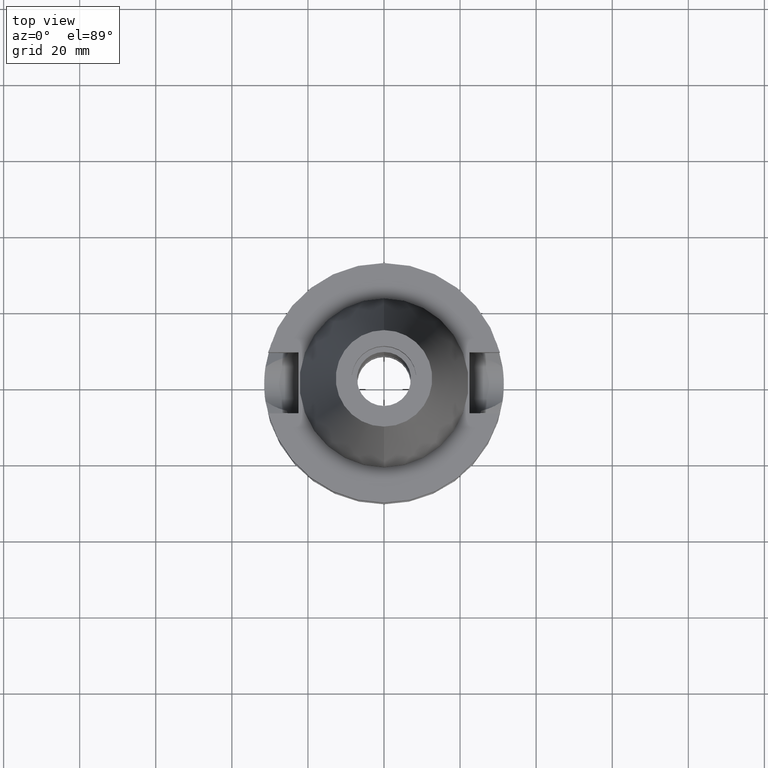
[diagram: clean part render]
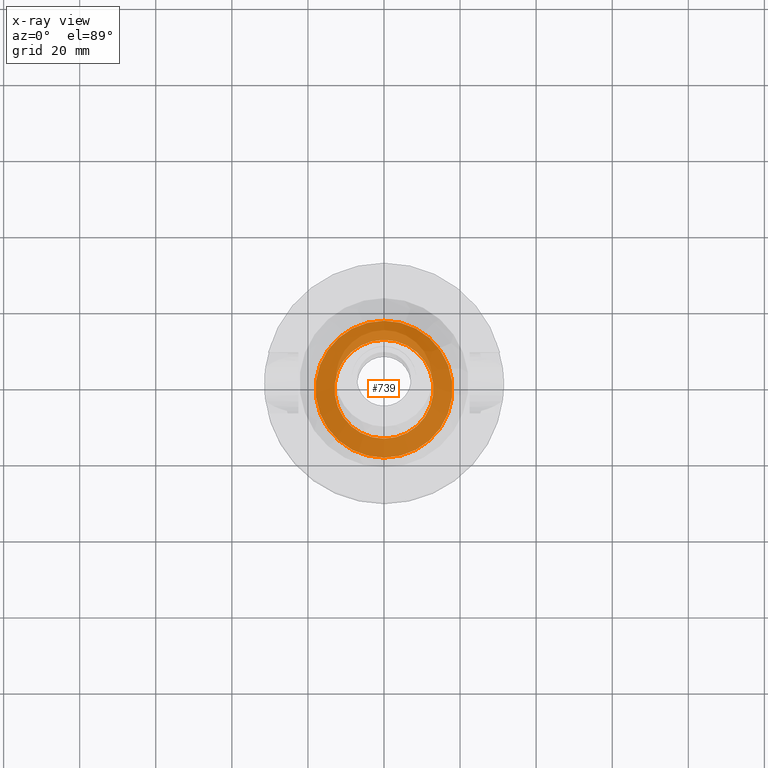
[diagram: x-ray — body ghosted, one internal face saturated and labeled with its STEP entity id]
A machine part, top view, then the same camera in x-ray: the body is ghosted and one INTERNAL B-rep face — a face not visible from any outside direction — is saturated and labeled: STEP entity #739.
In plain terms, the highlighted planar face has unit normal (0, 0, -1).
Its self-contained STEP definition (entity closure, byte-faithful):
#19 = CARTESIAN_POINT ( 'NONE',  ( 0.0000000000000000000, 0.0000000000000000000, -10.80000000000000071 ) ) ;
#137 = CARTESIAN_POINT ( 'NONE',  ( 0.0000000000000000000, -13.00000000000000000, -10.80000000000000071 ) ) ;
#149 = DIRECTION ( 'NONE',  ( 0.0000000000000000000, 1.000000000000000000, 0.0000000000000000000 ) ) ;
#168 = CARTESIAN_POINT ( 'NONE',  ( 0.0000000000000000000, 0.0000000000000000000, -10.80000000000000071 ) ) ;
#210 = DIRECTION ( 'NONE',  ( 0.0000000000000000000, -1.000000000000000000, 0.0000000000000000000 ) ) ;
#351 = EDGE_CURVE ( 'NONE', #2967, #1896, #3398, .T. ) ;
#386 = DIRECTION ( 'NONE',  ( 0.0000000000000000000, -1.000000000000000000, 0.0000000000000000000 ) ) ;
#463 = EDGE_LOOP ( 'NONE', ( #2418, #2921 ) ) ;
#524 = DIRECTION ( 'NONE',  ( 0.0000000000000000000, 0.0000000000000000000, -1.000000000000000000 ) ) ;
#647 = AXIS2_PLACEMENT_3D ( 'NONE', #1195, #2832, #386 ) ;
#739 = ADVANCED_FACE ( 'NONE', ( #1332, #3348 ), #2175, .F. ) ;
#775 = AXIS2_PLACEMENT_3D ( 'NONE', #19, #1166, #1484 ) ;
#880 = EDGE_LOOP ( 'NONE', ( #3162, #1426 ) ) ;
#1109 = AXIS2_PLACEMENT_3D ( 'NONE', #3088, #524, #210 ) ;
#1166 = DIRECTION ( 'NONE',  ( 0.0000000000000000000, 0.0000000000000000000, -1.000000000000000000 ) ) ;
#1195 = CARTESIAN_POINT ( 'NONE',  ( 0.0000000000000000000, 0.0000000000000000000, -10.80000000000000071 ) ) ;
#1332 = FACE_OUTER_BOUND ( 'NONE', #880, .T. ) ;
#1426 = ORIENTED_EDGE ( 'NONE', *, *, #3263, .F. ) ;
#1440 = DIRECTION ( 'NONE',  ( 0.0000000000000000000, -1.000000000000000000, 0.0000000000000000000 ) ) ;
#1484 = DIRECTION ( 'NONE',  ( 0.0000000000000000000, 1.000000000000000000, 0.0000000000000000000 ) ) ;
#1618 = VERTEX_POINT ( 'NONE', #3598 ) ;
#1684 = CARTESIAN_POINT ( 'NONE',  ( 0.0000000000000000000, 0.0000000000000000000, -10.80000000000000071 ) ) ;
#1735 = CARTESIAN_POINT ( 'NONE',  ( 0.0000000000000000000, 18.00000000000000000, -10.80000000000000071 ) ) ;
#1793 = VERTEX_POINT ( 'NONE', #1735 ) ;
#1896 = VERTEX_POINT ( 'NONE', #3571 ) ;
#2114 = CIRCLE ( 'NONE', #2949, 18.00000000000000000 ) ;
#2175 = PLANE ( 'NONE',  #1109 ) ;
#2262 = EDGE_CURVE ( 'NONE', #1793, #1618, #2341, .T. ) ;
#2341 = CIRCLE ( 'NONE', #775, 18.00000000000000000 ) ;
#2418 = ORIENTED_EDGE ( 'NONE', *, *, #3543, .F. ) ;
#2672 = DIRECTION ( 'NONE',  ( 0.0000000000000000000, 0.0000000000000000000, 1.000000000000000000 ) ) ;
#2743 = DIRECTION ( 'NONE',  ( 0.0000000000000000000, 0.0000000000000000000, -1.000000000000000000 ) ) ;
#2832 = DIRECTION ( 'NONE',  ( 0.0000000000000000000, 0.0000000000000000000, 1.000000000000000000 ) ) ;
#2921 = ORIENTED_EDGE ( 'NONE', *, *, #351, .F. ) ;
#2949 = AXIS2_PLACEMENT_3D ( 'NONE', #1684, #2743, #1440 ) ;
#2967 = VERTEX_POINT ( 'NONE', #137 ) ;
#3088 = CARTESIAN_POINT ( 'NONE',  ( 0.0000000000000000000, 0.0000000000000000000, -10.80000000000000071 ) ) ;
#3162 = ORIENTED_EDGE ( 'NONE', *, *, #2262, .F. ) ;
#3246 = CIRCLE ( 'NONE', #3540, 13.00000000000000000 ) ;
#3263 = EDGE_CURVE ( 'NONE', #1618, #1793, #2114, .T. ) ;
#3348 = FACE_BOUND ( 'NONE', #463, .T. ) ;
#3398 = CIRCLE ( 'NONE', #647, 13.00000000000000000 ) ;
#3540 = AXIS2_PLACEMENT_3D ( 'NONE', #168, #2672, #149 ) ;
#3543 = EDGE_CURVE ( 'NONE', #1896, #2967, #3246, .T. ) ;
#3571 = CARTESIAN_POINT ( 'NONE',  ( 0.0000000000000000000, 13.00000000000000000, -10.80000000000000071 ) ) ;
#3598 = CARTESIAN_POINT ( 'NONE',  ( 0.0000000000000000000, -18.00000000000000000, -10.80000000000000071 ) ) ;